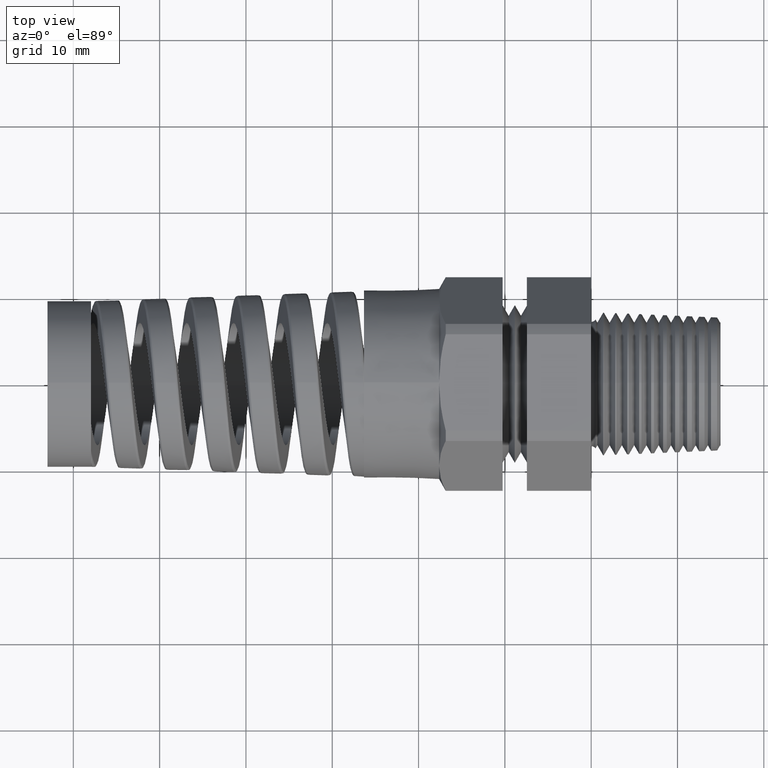
[diagram: clean part render]
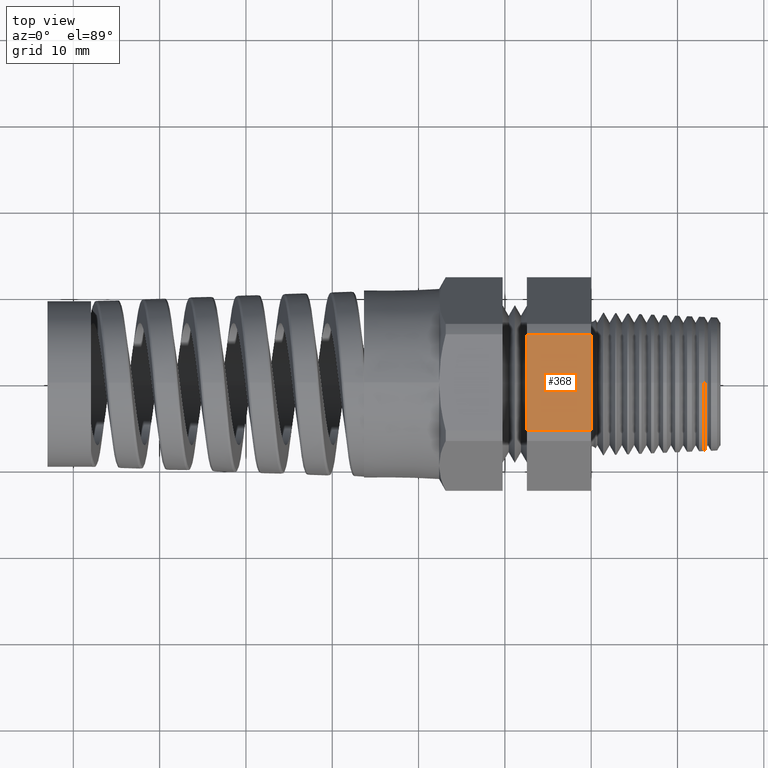
[diagram: same view with one face highlighted and labeled with its STEP entity id]
A machine part, top view. The second image highlights one B-rep face of the part: STEP entity #368.
In plain terms, the highlighted planar face has unit normal (0, 0, 1).
Its self-contained STEP definition (entity closure, byte-faithful):
#336 = EDGE_CURVE ( 'NONE', #9408, #1219, #2888, .T. ) ;
#368 = ADVANCED_FACE ( 'NONE', ( #2976 ), #2974, .T. ) ;
#369 = EDGE_LOOP ( 'NONE', ( #372, #377, #381, #380 ) ) ;
#372 = ORIENTED_EDGE ( 'NONE', *, *, #9410, .T. ) ;
#377 = ORIENTED_EDGE ( 'NONE', *, *, #336, .T. ) ;
#380 = ORIENTED_EDGE ( 'NONE', *, *, #862, .F. ) ;
#381 = ORIENTED_EDGE ( 'NONE', *, *, #1220, .F. ) ;
#587 = CARTESIAN_POINT ( 'NONE',  ( 0.0000000000000000000, 0.2194056517047815200, 0.4350000000000000000 ) ) ;
#699 = DIRECTION ( 'NONE',  ( 0.0000000000000000000, -1.000000000000000000, 0.0000000000000000000 ) ) ;
#700 = VECTOR ( 'NONE', #699, 39.37007874015748100 ) ;
#701 = CARTESIAN_POINT ( 'NONE',  ( 0.0000000000000000000, 0.2194056517047814900, 0.4350000000000001600 ) ) ;
#702 = LINE ( 'NONE', #701, #700 ) ;
#703 = CARTESIAN_POINT ( 'NONE',  ( 0.0000000000000000000, -0.2194056517047814900, 0.4350000000000001600 ) ) ;
#862 = EDGE_CURVE ( 'NONE', #9411, #1185, #4074, .T. ) ;
#1185 = VERTEX_POINT ( 'NONE', #587 ) ;
#1219 = VERTEX_POINT ( 'NONE', #703 ) ;
#1220 = EDGE_CURVE ( 'NONE', #1185, #1219, #702, .T. ) ;
#2885 = DIRECTION ( 'NONE',  ( 1.000000000000000000, 0.0000000000000000000, 0.0000000000000000000 ) ) ;
#2886 = VECTOR ( 'NONE', #2885, 39.37007874015748100 ) ;
#2887 = CARTESIAN_POINT ( 'NONE',  ( -2.085539792128106900, -0.2194056517047814900, 0.4350000000000001600 ) ) ;
#2888 = LINE ( 'NONE', #2887, #2886 ) ;
#2970 = DIRECTION ( 'NONE',  ( 1.000000000000000000, 0.0000000000000000000, 0.0000000000000000000 ) ) ;
#2971 = DIRECTION ( 'NONE',  ( 0.0000000000000000000, 0.0000000000000000000, 1.000000000000000000 ) ) ;
#2972 = CARTESIAN_POINT ( 'NONE',  ( -2.085539792128106900, 0.2194056517047814900, 0.4350000000000001600 ) ) ;
#2973 = AXIS2_PLACEMENT_3D ( 'NONE', #2972, #2971, #2970 ) ;
#2974 = PLANE ( 'NONE',  #2973 ) ;
#2976 = FACE_OUTER_BOUND ( 'NONE', #369, .T. ) ;
#4071 = DIRECTION ( 'NONE',  ( 1.000000000000000000, 0.0000000000000000000, 0.0000000000000000000 ) ) ;
#4072 = VECTOR ( 'NONE', #4071, 39.37007874015748100 ) ;
#4073 = CARTESIAN_POINT ( 'NONE',  ( -2.085539792128106900, 0.2194056517047815200, 0.4350000000000000000 ) ) ;
#4074 = LINE ( 'NONE', #4073, #4072 ) ;
#7223 = CARTESIAN_POINT ( 'NONE',  ( -0.2935323383084577100, -0.2194056517047814900, 0.4350000000000001600 ) ) ;
#7281 = CARTESIAN_POINT ( 'NONE',  ( -0.2935323383084577100, 0.2194056517047815200, 0.4350000000000000000 ) ) ;
#7282 = DIRECTION ( 'NONE',  ( 0.0000000000000000000, -1.000000000000000000, 0.0000000000000000000 ) ) ;
#7283 = VECTOR ( 'NONE', #7282, 39.37007874015748100 ) ;
#7284 = CARTESIAN_POINT ( 'NONE',  ( -0.2935323383084577100, 0.3604000000000000500, 0.4350000000000001600 ) ) ;
#7285 = LINE ( 'NONE', #7284, #7283 ) ;
#9408 = VERTEX_POINT ( 'NONE', #7223 ) ;
#9410 = EDGE_CURVE ( 'NONE', #9411, #9408, #7285, .T. ) ;
#9411 = VERTEX_POINT ( 'NONE', #7281 ) ;